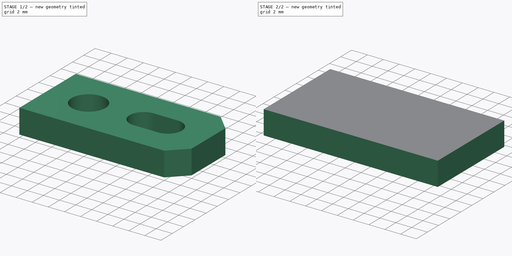
[diagram: build sequence overview — one tinted view per stage of 2, left to right]
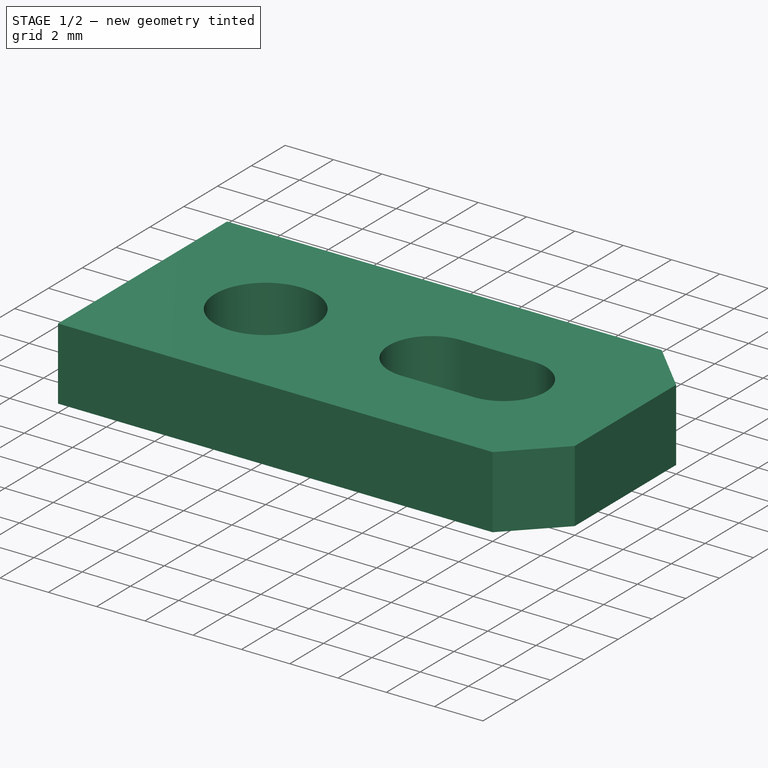
[diagram: stage 1 of 2 — iso view after this stage's code; geometry added in this stage tinted green]
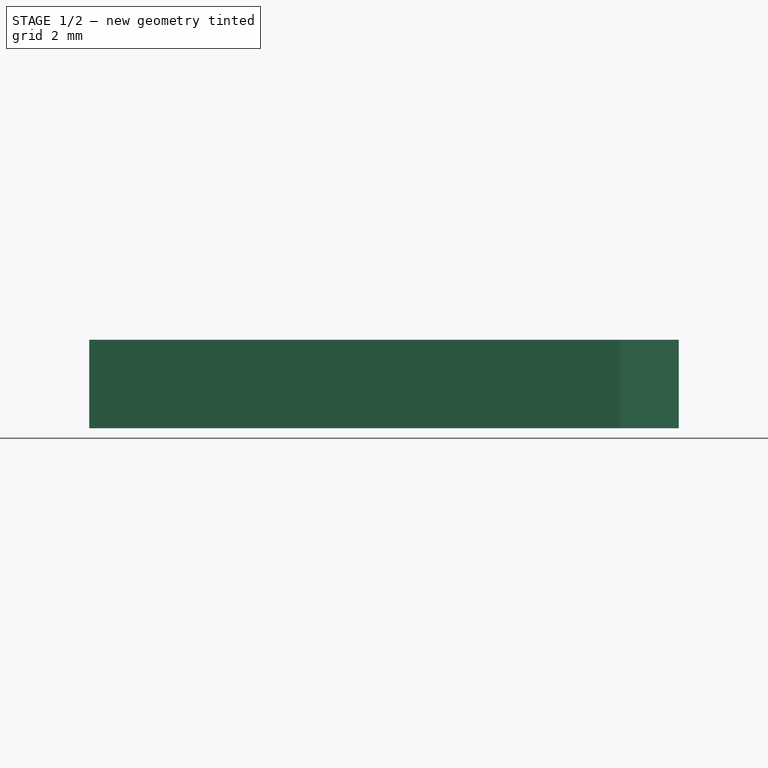
[diagram: stage 1 of 2 — front view after this stage's code; geometry added in this stage tinted green]
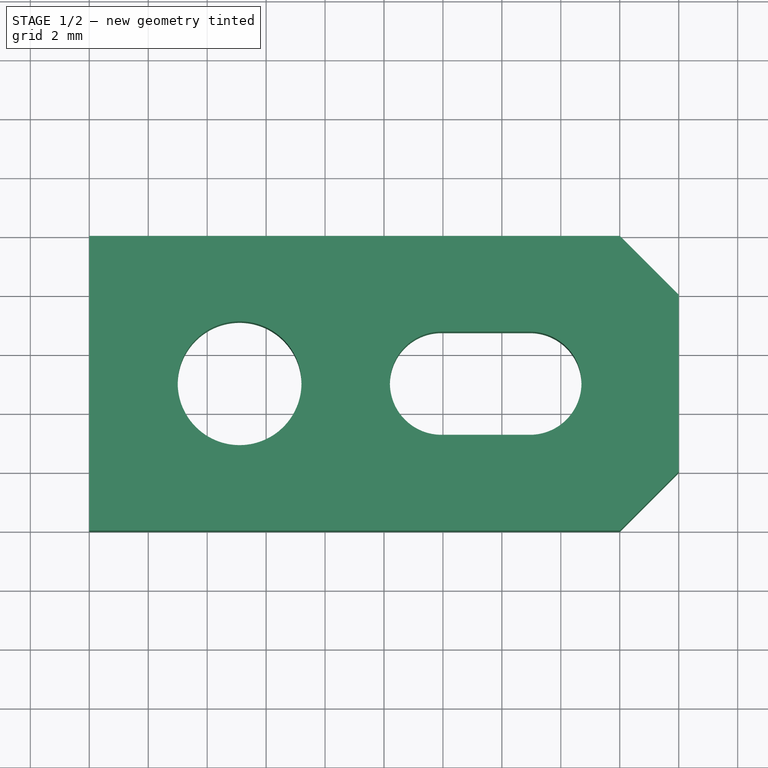
[diagram: stage 1 of 2 — top view after this stage's code; geometry added in this stage tinted green]
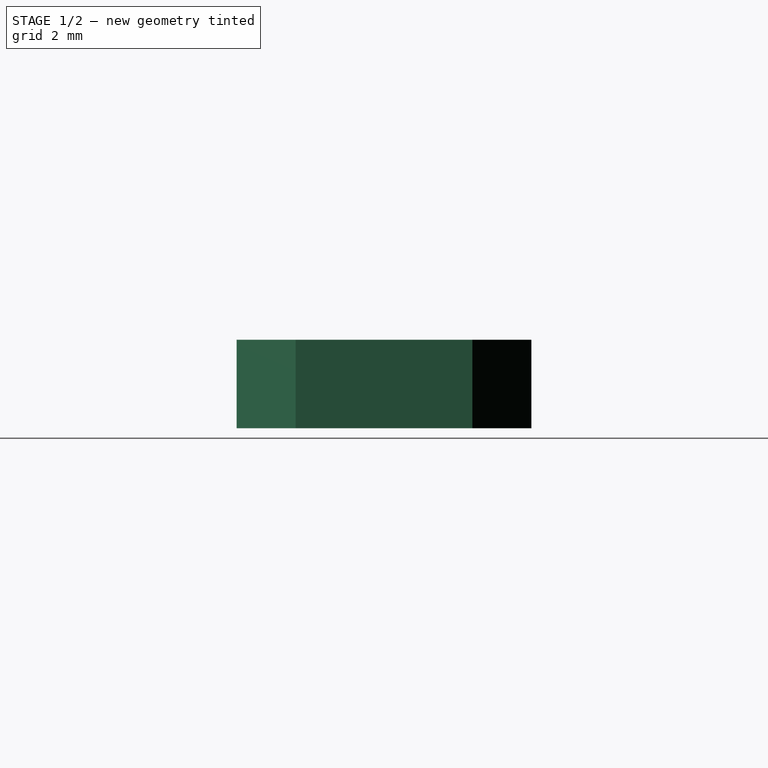
[diagram: stage 1 of 2 — right view after this stage's code; geometry added in this stage tinted green]
FCSTD DOCUMENT  (FreeCAD 0.18R16146 (Git))
Label: lock_plate
License: All rights reserved
LicenseURL: http://en.wikipedia.org/wiki/All_rights_reserved
objects: Path::FeaturePython×8, Part::FeaturePython×2, Sketcher::SketchObject×1, PartDesign::Pad×1, PartDesign::Body×1, App::Part×1, App::FeaturePython×1, App::DocumentObjectGroup×1, Path::FeatureCompoundPython×1
note: 8 computed .brp shape members not serialized (recipe doc carries the construction recipe); baked Part::Feature solids carry a one-line shape summary decoded from their .brp

FEATURE [Sketcher::SketchObject] Sketch
  MapMode = 5
  Support = -> [XY_Plane001]
  sketch-geometry (15):
    g0: LineSegment StartX=0 StartY=0 StartZ=0 EndX=18 EndY=0 EndZ=0
    g1: LineSegment StartX=20 StartY=2 StartZ=0 EndX=20 EndY=8 EndZ=0
    g2: LineSegment StartX=18 StartY=10 StartZ=0 EndX=0 EndY=10 EndZ=0
    g3: LineSegment StartX=0 StartY=10 StartZ=0 EndX=0 EndY=0 EndZ=0
    g4: Circle CenterX=5.1 CenterY=5 CenterZ=0 NormalX=0 NormalY=0 NormalZ=1 AngleXU=0 Radius=2.1
    g5: ArcOfCircle CenterX=11.95 CenterY=5 CenterZ=0 NormalX=0 NormalY=0 NormalZ=1 AngleXU=0 Radius=1.75 StartAngle=1.5708 EndAngle=4.71239
    g6: ArcOfCircle CenterX=14.95 CenterY=5 CenterZ=0 NormalX=0 NormalY=0 NormalZ=1 AngleXU=0 Radius=1.75 StartAngle=4.71239 EndAngle=7.85398
    g7: LineSegment StartX=11.95 StartY=3.25 StartZ=0 EndX=14.95 EndY=3.25 EndZ=0
    g8: LineSegment StartX=11.95 StartY=6.75 StartZ=0 EndX=14.95 EndY=6.75 EndZ=0
    g9: LineSegment StartX=18 StartY=10 StartZ=0 EndX=20 EndY=8 EndZ=0
    g10: LineSegment StartX=18 StartY=0 StartZ=0 EndX=20 EndY=2 EndZ=0
    g11: LineSegment [constr] StartX=0 StartY=5 StartZ=0 EndX=3 EndY=5 EndZ=0
    g12: LineSegment [constr] StartX=5.1 StartY=5 StartZ=0 EndX=3 EndY=5 EndZ=0
    g13: LineSegment [constr] StartX=16.7 StartY=5 StartZ=0 EndX=20 EndY=5 EndZ=0
    g14: LineSegment [constr] StartX=7.2 StartY=5 StartZ=0 EndX=10.2 EndY=5 EndZ=0
  constraints (43):
    c: Coincident(g2,g3)
    c: Coincident(g3,g0)
    c: Horizontal(g0)
    c: Horizontal(g2)
    c: Vertical(g1)
    c: Vertical(g3)
    c: Coincident(g0,g-1)
    c: Tangent(g5,g8) = 1.5708
    c: Tangent(g5,g7) = -1.5708
    c: Tangent(g7,g6) = -1.5708
    c: Tangent(g8,g6) = 1.5708
    c: Horizontal(g7)
    c: Equal(g5,g6)
    c: Coincident(g9,g2)
    c: Coincident(g9,g1)
    c: Coincident(g10,g0)
    c: Coincident(g10,g1)
    c: PointOnObject(g11,g3)
    c: Coincident(g12,g4)
    c: Coincident(g12,g11)
    c: PointOnObject(g13,g6)
    c: PointOnObject(g13,g1)
    c: Horizontal(g13)
    c: Perpendicular(g6,g13)
    c: Perpendicular(g4,g11)
    c: Symmetric(g0,g2,g11)
    c: Diameter(g4) = 4.2
    c: Diameter(g6) = 3.5
    c: Equal(g9,g10)
    c: Equal(g2,g0)
    c: Angle(g9,g1) = 2.35619
    c: PointOnObject(g14,g4)
    c: PointOnObject(g14,g5)
    c: Horizontal(g14)
    c: Perpendicular(g5,g14)
    c: Perpendicular(g4,g14)
    c: DistanceY(g3,g3) = 10
    c: PointOnObject(g11,g4)
    c: DistanceX(g14,g14) = 3
    c: DistanceY(g1,g1) = 6
    c: DistanceX(g2,g1) = 20
    c: DistanceX(g8,g8) = 3
    c: DistanceX(g11,g11) = 3
FEATURE [PartDesign::Pad] Pad
  Length = 3
  Length2 = 100
  Profile = -> Sketch
  Type = 0
FEATURE [PartDesign::Body] Body
  Group = -> [Sketch,Pad]
  Origin = -> Origin001
  Tip = -> Pad
FEATURE [App::Part] Part
  Group = -> [Body]
  Origin = -> Origin
FEATURE [App::FeaturePython] SetupSheet  # Path/CAM operation (typed FeaturePython)
  ClearanceHeightExpression = OpStockZMax+SetupSheet.ClearanceHeightOffset
  ClearanceHeightOffset = 5
  FinalDepthExpression = -0.2mm
  HorizRapid = 33.33
  SafeHeightExpression = OpStockZMax+SetupSheet.SafeHeightOffset
  SafeHeightOffset = 3
  StartDepthExpression = 3.2mm
  StepDownExpression = 0.3
  VertRapid = 33.33
FEATURE [Part::FeaturePython] Clone  label="Model-Part"  # Draft clone (typed FeaturePython)
  AttacherType = Attacher::AttachEngine3D
  Fuse = false
  Objects = -> [Part]
  PathResource = Model
  Scale = (1,1,1)
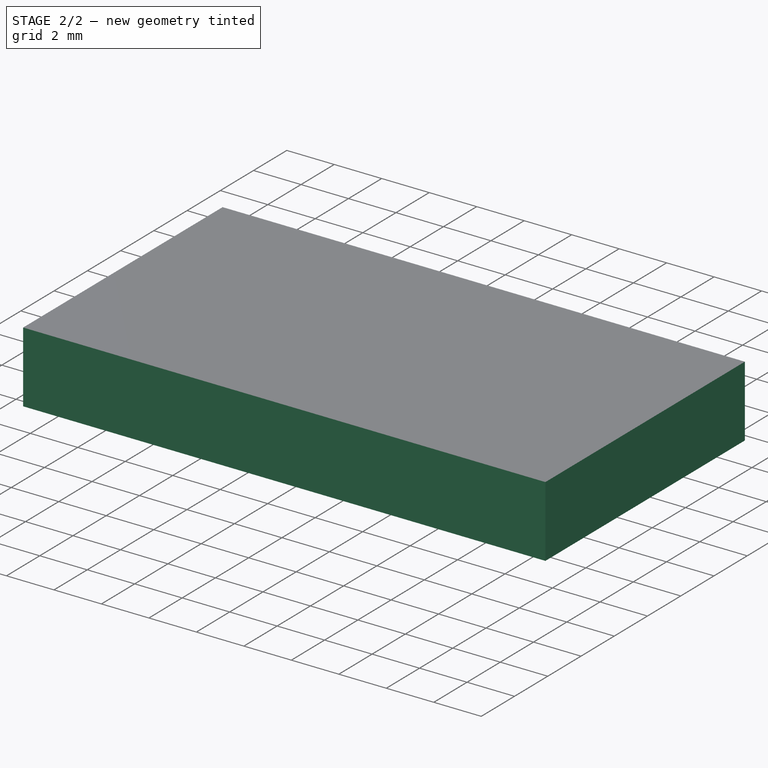
[diagram: stage 2 of 2 — iso view after this stage's code; geometry added in this stage tinted green]
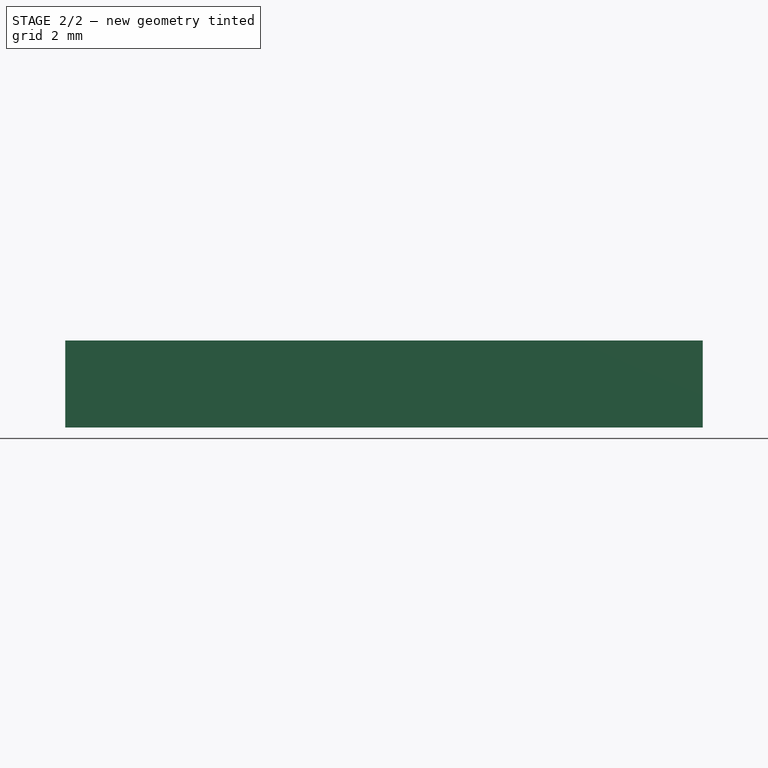
[diagram: stage 2 of 2 — front view after this stage's code; geometry added in this stage tinted green]
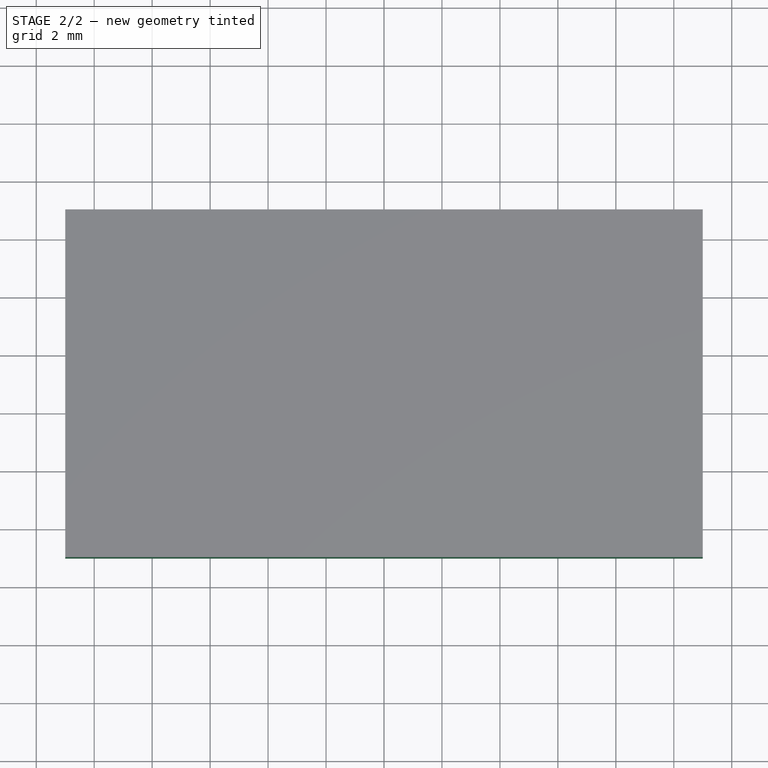
[diagram: stage 2 of 2 — top view after this stage's code; geometry added in this stage tinted green]
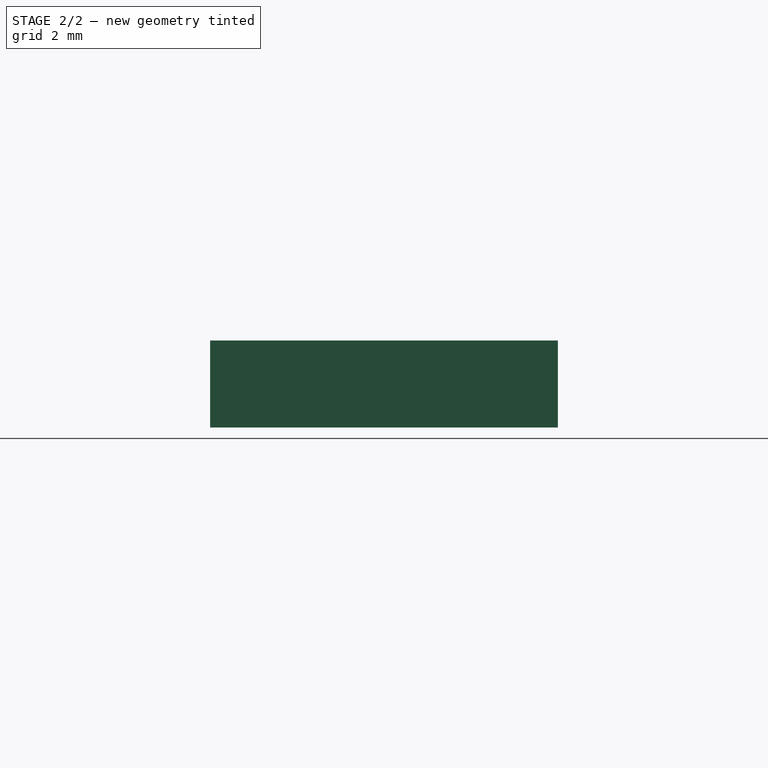
[diagram: stage 2 of 2 — right view after this stage's code; geometry added in this stage tinted green]
FEATURE [App::DocumentObjectGroup] Model
  Group = -> [Clone]
FEATURE [Path::FeaturePython] T3__AluminiumMill  label="T3: AluminiumMill"  # Path/CAM operation (typed FeaturePython)
  HorizFeed = 13.33
  HorizRapid = 33.3
  SpindleDir = 0
  SpindleSpeed = 17000
  ToolNumber = 3
  VertFeed = 6.66
  VertRapid = 33.33
  expr: VertRapid = SetupSheet.VertRapid
  expr: HorizFeed = 800mm / min
FEATURE [Part::FeaturePython] Stock  # WARN: FeaturePython — macro-defined, semantics opaque (R4)
  Base = -> Model
  ExtXneg = 1
  ExtXpos = 1
  ExtYneg = 1
  ExtYpos = 1
  ExtZneg = 0
  ExtZpos = 0
  StockType = FromBase
FEATURE [Path::FeaturePython] Profile_Faces  # Path/CAM operation (typed FeaturePython)
  Active = true
  AreaParams:
    Tolerance = 1e-07
    FitArcs = True
    Simplify = False
    CleanDistance = 0.0
    Accuracy = 0.01
    Unit = 1.0
    MinArcPoints = 4
    MaxArcPoints = 100
    ClipperScale = 10000000.0
    Fill = 0
    Coplanar = 0
    Reorient = True
    Outline = False
    Explode = False
    OpenMode = 0
    Deflection = 0.01
    SubjectFill = 0
    ClipFill = 0
    Offset = 1.5
    ExtraPass = 0
    Stepover = 0.0
    LastStepover = 0.0
    JoinType = 0
    EndType = 0
    MiterLimit = 2.0
    RoundPrecision = 0.0
    PocketMode = 0
    ToolRadius = 1.0
    PocketExtraOffset = 0.0
    PocketStepover = 0.0
    PocketLastStepover = 0.0
    FromCenter = False
    Angle = 45.0
    AngleShift = 0.0
    Shift = 0.0
    Thicken = False
    SectionCount = -1
    Stepdown = 1.0
    SectionOffset = 0.0
    SectionTolerance = 1e-06
    SectionMode = 2
    Project = False
  Base = -> [Clone]
  ClearanceHeight = 8
  Direction = 1
  FinalDepth = -0.2
  JoinType = 0
  MiterLimit = 0.1
  OffsetExtra = 0
  OpFinalDepth = 3
  OpStartDepth = 3.3
  OpStockZMax = 3
  OpStockZMin = 0
  OpToolDiameter = 3
  PathParams = {'orientation': 0, 'feedrate': 13.33, 'feedrate_v': 6.66, 'verbose': True, 'resume_height': 6.0, 'retraction': 8.0, 'return_end': True, 'preamble': False}
  SafeHeight = 6
  Side = 0
  StartDepth = 3.2
  StartPoint = (0,0,0)
  StepDown = 0.3
  ToolController = -> T3__AluminiumMill
  UseComp = true
  UseStartPoint = false
  processCircles = false
  processHoles = false
  processPerimeter = true
  expr: ClearanceHeight = OpStockZMax + SetupSheet.ClearanceHeightOffset
  expr: SafeHeight = OpStockZMax + SetupSheet.SafeHeightOffset
  expr: StepDown = 0.3
  expr: FinalDepth = -0.2mm
  expr: StartDepth = 3.2mm
FEATURE [Path::FeaturePython] Profile_Edges  label="Holes_Slits_First"  # Path/CAM operation (typed FeaturePython)
  Active = true
  AreaParams:
    Tolerance = 1e-07
    FitArcs = True
    Simplify = False
    CleanDistance = 0.0
    Accuracy = 0.01
    Unit = 1.0
    MinArcPoints = 4
    MaxArcPoints = 100
    ClipperScale = 10000000.0
    Fill = 0
    Coplanar = 0
    Reorient = True
    Outline = False
    Explode = False
    OpenMode = 0
    Deflection = 0.01
    SubjectFill = 0
    ClipFill = 0
    Offset = -1.5
    ExtraPass = 0
    Stepover = 0.0
    LastStepover = 0.0
    JoinType = 0
    EndType = 0
    MiterLimit = 2.0
    RoundPrecision = 0.0
    PocketMode = 0
    ToolRadius = 1.0
    PocketExtraOffset = 0.0
    PocketStepover = 0.0
    PocketLastStepover = 0.0
    FromCenter = False
    Angle = 45.0
    AngleShift = 0.0
    Shift = 0.0
    Thicken = False
    SectionCount = -1
    Stepdown = 1.0
    SectionOffset = 0.0
    SectionTolerance = 1e-06
    SectionMode = 2
    Project = False
  Base = -> [Clone]
  ClearanceHeight = 8
  Direction = 0
  FinalDepth = -0.2
  JoinType = 0
  MiterLimit = 0.1
  OffsetExtra = 0
  OpFinalDepth = 3
  OpStartDepth = 3.3
  OpStockZMax = 3
  OpStockZMin = 0
  OpToolDiameter = 3
  PathParams = {'orientation': 1, 'feedrate': 13.33, 'feedrate_v': 6.66, 'verbose': True, 'resume_height': 6.0, 'retraction': 8.0, 'return_end': True, 'preamble': False}
  SafeHeight = 6
  Side = 1
  StartDepth = 3.2
  StartPoint = (0,0,0)
  StepDown = 0.3
  ToolController = -> T3__AluminiumMill
  UseComp = true
  UseStartPoint = false
  expr: ClearanceHeight = OpStockZMax + SetupSheet.ClearanceHeightOffset
  expr: SafeHeight = OpStockZMax + SetupSheet.SafeHeightOffset
  expr: StepDown = 0.3
  expr: FinalDepth = -0.2mm
  expr: StartDepth = 3.2mm
FEATURE [Path::FeaturePython] TagDressup  label="Contour_First"  # Path/CAM operation (typed FeaturePython)
  Angle = 45
  Base = -> Profile_Faces
  Height = 1.7
  Positions = (4) [(13.5,11.5,0),(4.5,11.5,0),(9,-1.5,0),(21.5,5,0)]
  Radius = 0
  SegmentationFactor = 50
  Width = 1.8
FEATURE [Path::FeaturePython] Array  label="Holes_Slits_Repeat"  # Path/CAM operation (typed FeaturePython)
  Angle = 0
  Base = -> Profile_Edges
  Centre = (0,0,0)
  Copies = 2
  CopiesX = 0
  CopiesY = 0
  Offset = (0,20,0)
  ToolController = -> T3__AluminiumMill
  Type = 0
FEATURE [Path::FeaturePython] Array001  # Path/CAM operation (typed FeaturePython)
  Angle = 0
  Base = -> Profile_Faces
  Centre = (0,0,0)
  Copies = 2
  CopiesX = 0
  CopiesY = 0
  Offset = (0,20,0)
  ToolController = -> T3__AluminiumMill
  Type = 0
FEATURE [Path::FeaturePython] TagDressup001  label="Contour_Repeat"  # Path/CAM operation (typed FeaturePython)
  Angle = 45
  Base = -> Array001
  Disabled = [0,1,2,3,4,5,6,7]
  Height = 1.7
  Positions = (8) [(4.12,26.5,-0.199999),(15.48,26.5,-0.199999),(12.51,13.5,-0.199999),(21.5,19.79,-0.199999),(3.39,41.5,-0.199999),(14.2,41.5,-0.199999),(21.5,34.81,-0.199999),(9.87,28.5,-0.199999)]
  Radius = 0
  SegmentationFactor = 50
  Width = 1.8
FEATURE [Path::FeatureCompoundPython] Operations  # Path/CAM operation (typed FeaturePython)
  Group = -> [Profile_Edges,Array,TagDressup,TagDressup001]
  UsePlacements = false
FEATURE [Path::FeaturePython] Job  # Path/CAM operation (typed FeaturePython)
  GeometryTolerance = 0.01
  Model = -> Model
  Operations = -> Operations
  PostProcessor = 1
  PostProcessorOutputFile = gcode/lock_plate2x1.ngc
  SetupSheet = -> SetupSheet
  Stock = -> Stock
  ToolController = -> [T3__AluminiumMill]
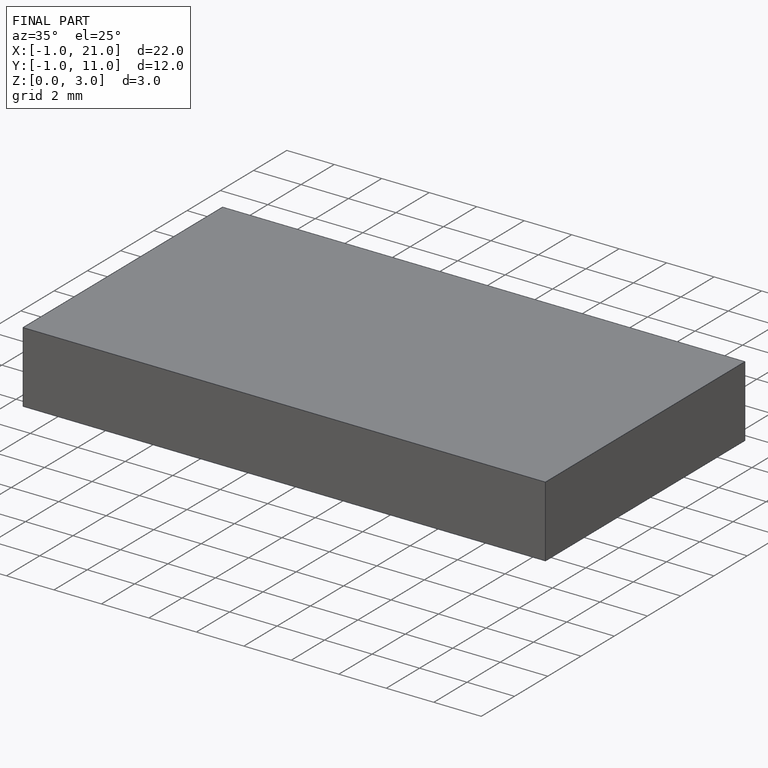
[diagram: finished part — iso view with bounding-box wireframe]
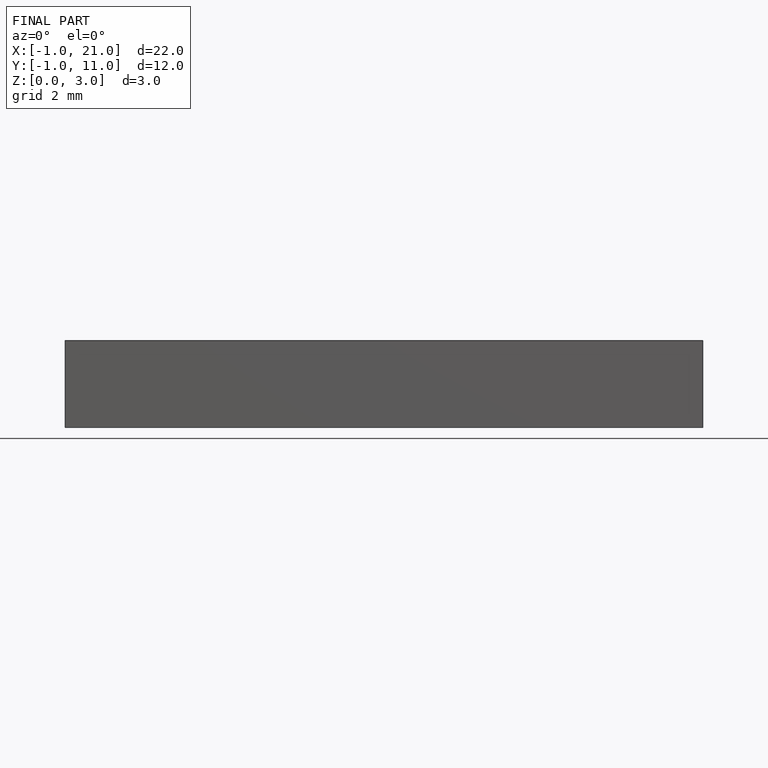
[diagram: finished part — front view with bounding-box wireframe]
